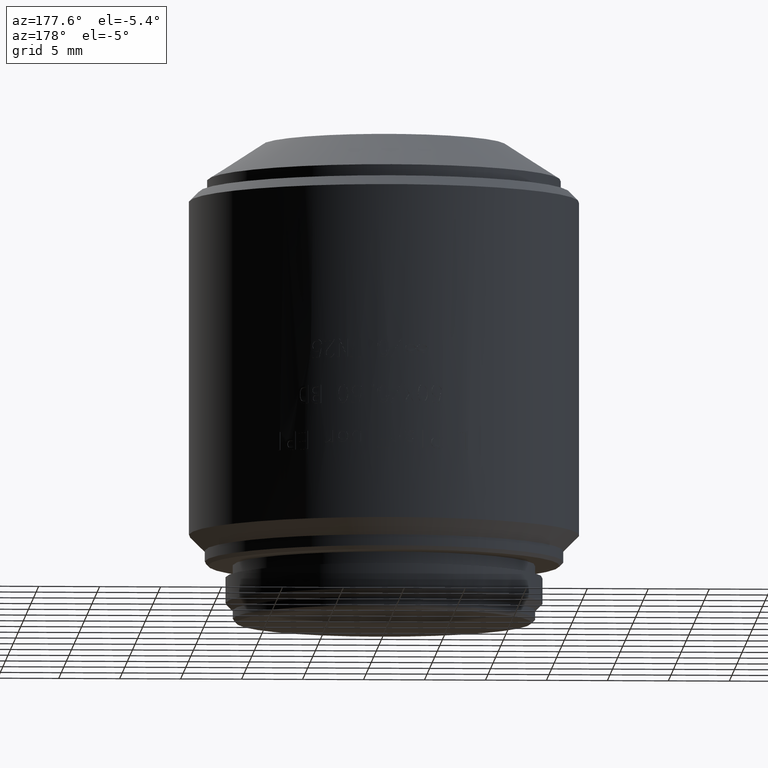
[diagram: clean part render]
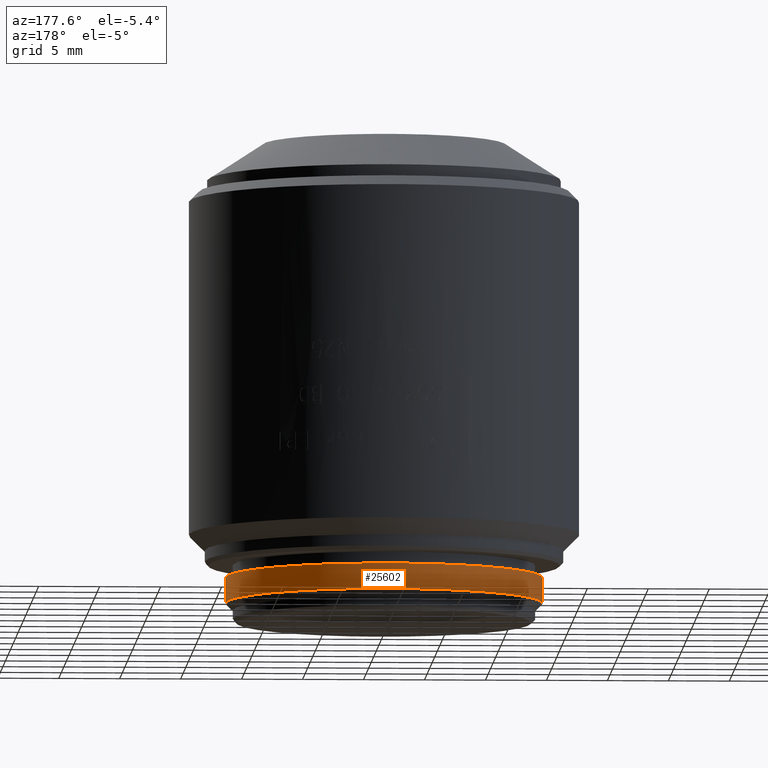
[diagram: same view with one face highlighted and labeled with its STEP entity id]
A machine part, auxiliary view. The second image highlights one B-rep face of the part: STEP entity #25602.
In plain terms, the highlighted cylindrical surface (partial cylindrical patch) has radius 13 mm, axis along (0, 0, -1).
Its self-contained STEP definition (entity closure, byte-faithful):
#1438 = EDGE_CURVE ( 'NONE', #12826, #25759, #27233, .T. ) ;
#1871 = CARTESIAN_POINT ( 'NONE',  ( -13.00000000000000000, 1.592040838891559095E-15, 1.600000000000000089 ) ) ;
#2145 = EDGE_CURVE ( 'NONE', #12826, #9684, #21430, .T. ) ;
#3026 = AXIS2_PLACEMENT_3D ( 'NONE', #23535, #13052, #21605 ) ;
#3055 = EDGE_CURVE ( 'NONE', #25759, #13301, #5409, .T. ) ;
#3500 = VECTOR ( 'NONE', #13659, 1000.000000000000000 ) ;
#3822 = CARTESIAN_POINT ( 'NONE',  ( -13.00000000000000000, 0.000000000000000000, 3.700000000000000178 ) ) ;
#5409 = LINE ( 'NONE', #11329, #3500 ) ;
#6050 = CARTESIAN_POINT ( 'NONE',  ( 0.000000000000000000, 0.000000000000000000, 4.700000000000000178 ) ) ;
#6450 = DIRECTION ( 'NONE',  ( -1.000000000000000000, 0.000000000000000000, 0.000000000000000000 ) ) ;
#7064 = CARTESIAN_POINT ( 'NONE',  ( 13.00000000000000000, 0.000000000000000000, 1.600000000000000089 ) ) ;
#8114 = CYLINDRICAL_SURFACE ( 'NONE', #25376, 13.00000000000000000 ) ;
#8477 = CARTESIAN_POINT ( 'NONE',  ( 0.000000000000000000, 0.000000000000000000, 1.600000000000000089 ) ) ;
#9684 = VERTEX_POINT ( 'NONE', #7064 ) ;
#11116 = CARTESIAN_POINT ( 'NONE',  ( 13.00000000000000000, 1.592040838891559095E-15, 3.700000000000000178 ) ) ;
#11329 = CARTESIAN_POINT ( 'NONE',  ( -13.00000000000000000, 0.000000000000000000, 4.700000000000000178 ) ) ;
#11604 = ORIENTED_EDGE ( 'NONE', *, *, #3055, .F. ) ;
#12826 = VERTEX_POINT ( 'NONE', #11116 ) ;
#13052 = DIRECTION ( 'NONE',  ( 0.000000000000000000, 0.000000000000000000, 1.000000000000000000 ) ) ;
#13301 = VERTEX_POINT ( 'NONE', #1871 ) ;
#13659 = DIRECTION ( 'NONE',  ( 0.000000000000000000, 0.000000000000000000, -1.000000000000000000 ) ) ;
#15816 = EDGE_LOOP ( 'NONE', ( #18965, #17457, #24752, #11604 ) ) ;
#16258 = VECTOR ( 'NONE', #19357, 1000.000000000000000 ) ;
#16512 = FACE_OUTER_BOUND ( 'NONE', #15816, .T. ) ;
#16882 = CARTESIAN_POINT ( 'NONE',  ( 13.00000000000000000, 1.592040838891559095E-15, 4.700000000000000178 ) ) ;
#17457 = ORIENTED_EDGE ( 'NONE', *, *, #2145, .T. ) ;
#18965 = ORIENTED_EDGE ( 'NONE', *, *, #1438, .F. ) ;
#19357 = DIRECTION ( 'NONE',  ( 0.000000000000000000, 0.000000000000000000, -1.000000000000000000 ) ) ;
#20979 = AXIS2_PLACEMENT_3D ( 'NONE', #8477, #25414, #23480 ) ;
#21430 = LINE ( 'NONE', #16882, #16258 ) ;
#21605 = DIRECTION ( 'NONE',  ( -1.000000000000000000, 0.000000000000000000, 0.000000000000000000 ) ) ;
#23335 = EDGE_CURVE ( 'NONE', #9684, #13301, #24958, .T. ) ;
#23480 = DIRECTION ( 'NONE',  ( -1.000000000000000000, 0.000000000000000000, 0.000000000000000000 ) ) ;
#23535 = CARTESIAN_POINT ( 'NONE',  ( 0.000000000000000000, 0.000000000000000000, 3.700000000000000178 ) ) ;
#24752 = ORIENTED_EDGE ( 'NONE', *, *, #23335, .T. ) ;
#24913 = DIRECTION ( 'NONE',  ( 0.000000000000000000, 0.000000000000000000, -1.000000000000000000 ) ) ;
#24958 = CIRCLE ( 'NONE', #20979, 13.00000000000000000 ) ;
#25376 = AXIS2_PLACEMENT_3D ( 'NONE', #6050, #24913, #6450 ) ;
#25414 = DIRECTION ( 'NONE',  ( 0.000000000000000000, 0.000000000000000000, 1.000000000000000000 ) ) ;
#25602 = ADVANCED_FACE ( 'NONE', ( #16512 ), #8114, .T. ) ;
#25759 = VERTEX_POINT ( 'NONE', #3822 ) ;
#27233 = CIRCLE ( 'NONE', #3026, 13.00000000000000000 ) ;